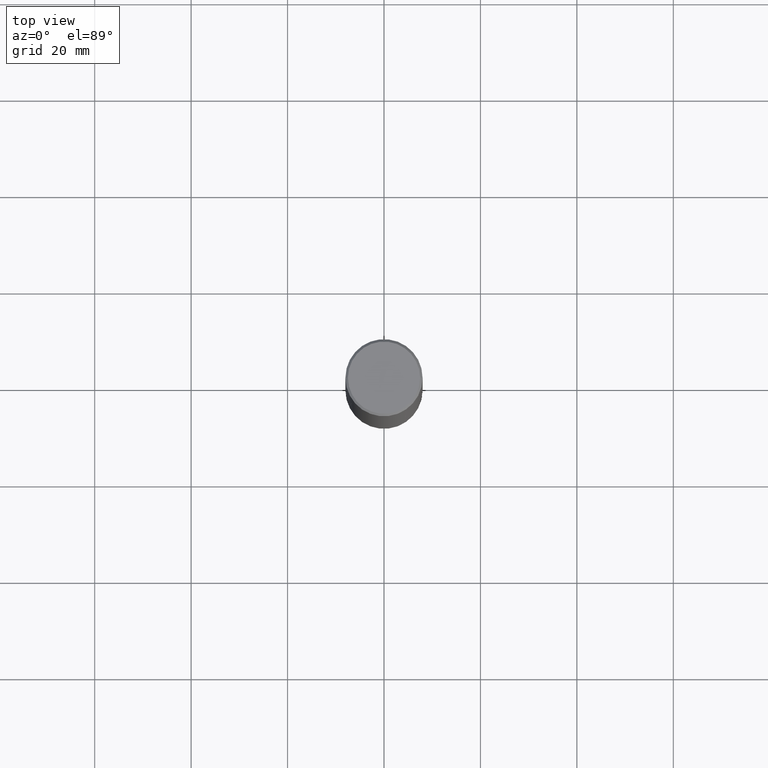
[diagram: clean part render]
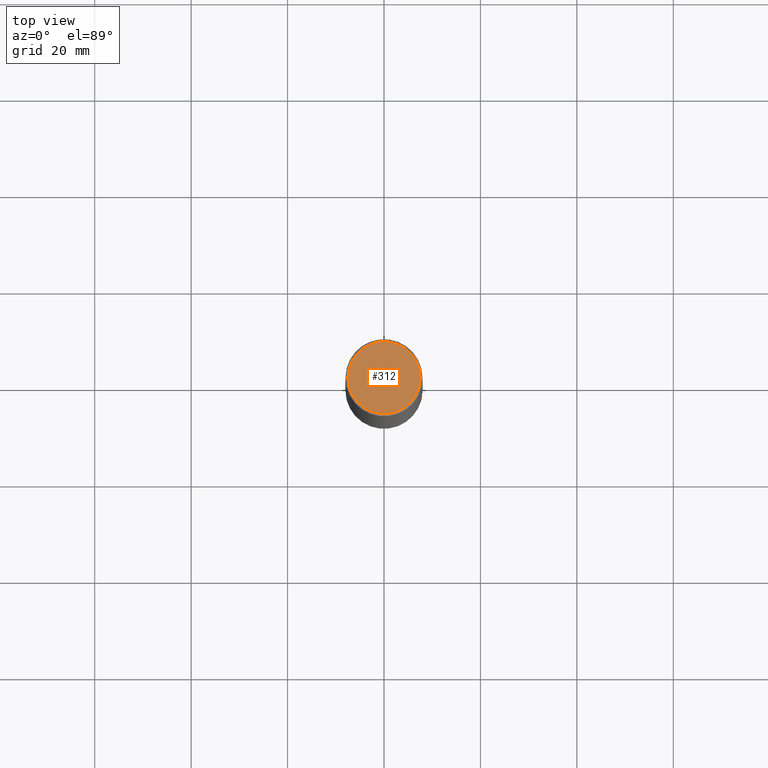
[diagram: same view with one face highlighted and labeled with its STEP entity id]
A machine part, top view. The second image highlights one B-rep face of the part: STEP entity #312.
In plain terms, the highlighted planar face has unit normal (0, -0, -1).
Its self-contained STEP definition (entity closure, byte-faithful):
#1 = DIRECTION ( 'NONE',  ( -2.445468806185136597E-29, 3.491481338843145583E-15, 1.000000000000000000 ) ) ;
#4 = CARTESIAN_POINT ( 'NONE',  ( -6.785034193178928885E-45, 9.687230607472908306E-31, 2.774533118565267485E-16 ) ) ;
#25 = DIRECTION ( 'NONE',  ( 1.000000000000000000, -6.982962677686265922E-15, 4.874125435057328359E-29 ) ) ;
#35 = VERTEX_POINT ( 'NONE', #118 ) ;
#56 = DIRECTION ( 'NONE',  ( -1.000000000000000000, 6.982962677686265922E-15, -4.876176775795935793E-29 ) ) ;
#106 = ORIENTED_EDGE ( 'NONE', *, *, #411, .T. ) ;
#118 = CARTESIAN_POINT ( 'NONE',  ( 0.2949499999999996014, -2.127023677808857708E-15, 2.774533118565413425E-16 ) ) ;
#135 = VERTEX_POINT ( 'NONE', #220 ) ;
#138 = ORIENTED_EDGE ( 'NONE', *, *, #366, .T. ) ;
#139 = EDGE_LOOP ( 'NONE', ( #106, #138 ) ) ;
#163 = CARTESIAN_POINT ( 'NONE',  ( -6.785034193178928885E-45, 9.687230607472908306E-31, 2.774533118565267485E-16 ) ) ;
#167 = CIRCLE ( 'NONE', #394, 0.2949499999999996014 ) ;
#184 = CARTESIAN_POINT ( 'NONE',  ( 2.059624841783561302E-15, 0.2949499999999996014, -8.910857649635209254E-16 ) ) ;
#187 = AXIS2_PLACEMENT_3D ( 'NONE', #4, #324, #353 ) ;
#220 = CARTESIAN_POINT ( 'NONE',  ( -0.2949499999999996014, 2.094539655171994135E-15, 2.774533118565122532E-16 ) ) ;
#279 = PLANE ( 'NONE',  #358 ) ;
#312 = ADVANCED_FACE ( 'NONE', ( #340 ), #279, .F. ) ;
#324 = DIRECTION ( 'NONE',  ( -2.445468806185136597E-29, 3.491481338843145583E-15, 1.000000000000000000 ) ) ;
#340 = FACE_OUTER_BOUND ( 'NONE', #139, .T. ) ;
#353 = DIRECTION ( 'NONE',  ( 1.000000000000000000, -6.982962677686265922E-15, 4.874125435057328359E-29 ) ) ;
#358 = AXIS2_PLACEMENT_3D ( 'NONE', #184, #403, #56 ) ;
#366 = EDGE_CURVE ( 'NONE', #35, #135, #413, .T. ) ;
#394 = AXIS2_PLACEMENT_3D ( 'NONE', #163, #1, #25 ) ;
#403 = DIRECTION ( 'NONE',  ( 2.438088387897960049E-29, -3.491481338843145188E-15, -1.000000000000000000 ) ) ;
#411 = EDGE_CURVE ( 'NONE', #135, #35, #167, .T. ) ;
#413 = CIRCLE ( 'NONE', #187, 0.2949499999999996014 ) ;